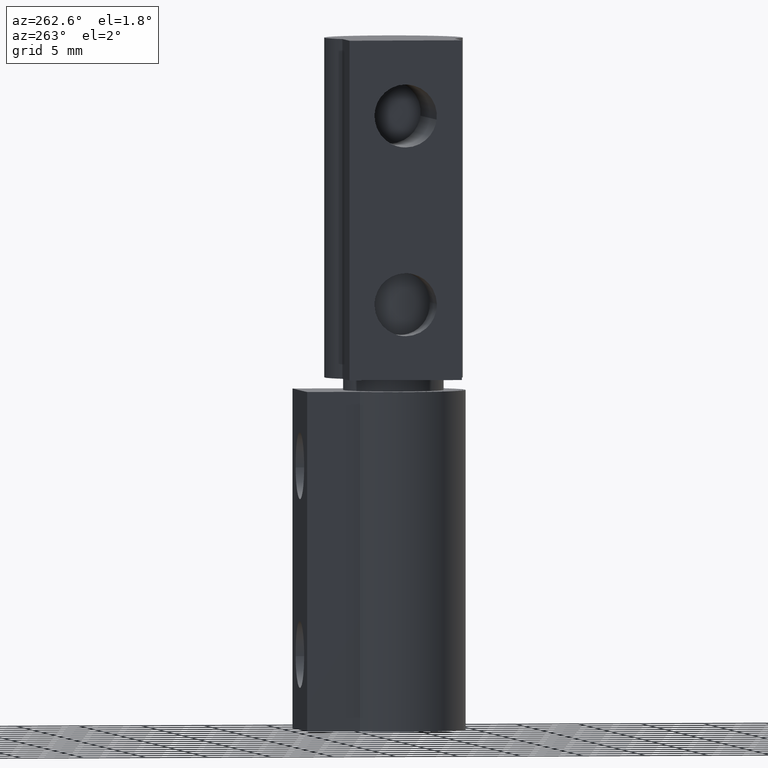
[diagram: clean part render]
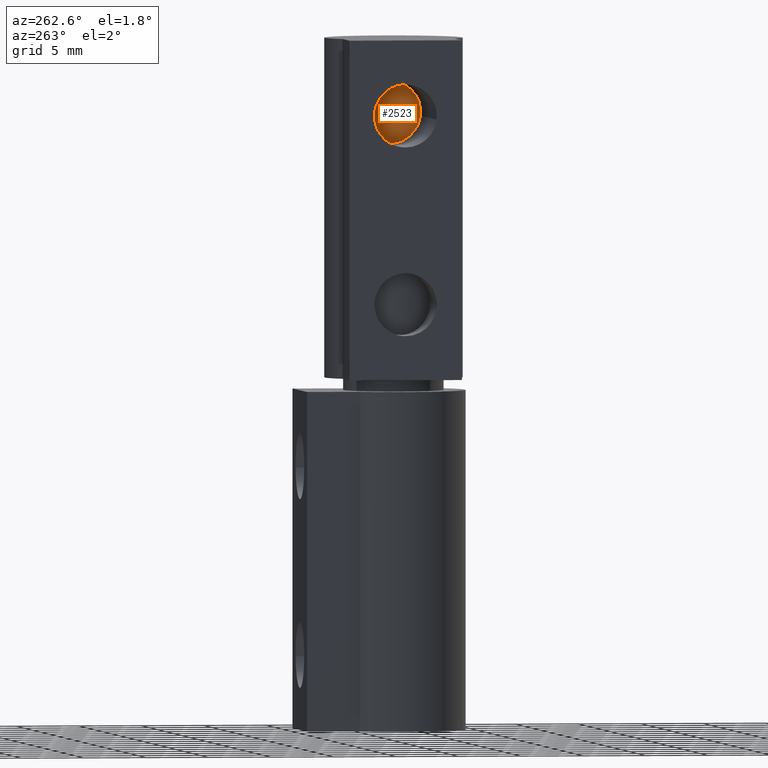
[diagram: same view with one face highlighted and labeled with its STEP entity id]
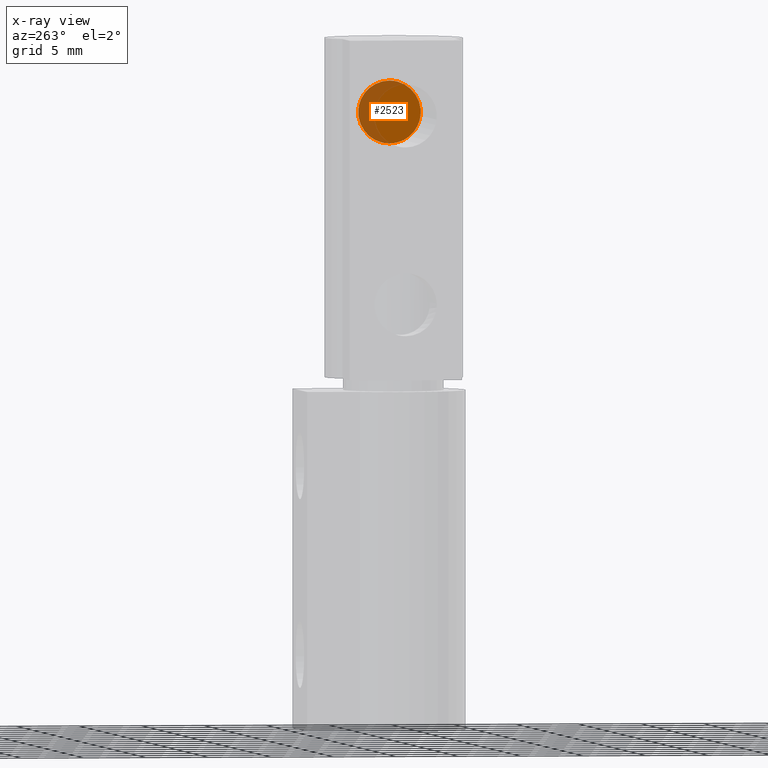
[diagram: x-ray of the same camera — body ghosted, the highlighted face saturated]
A machine part, auxiliary view. The second image highlights one B-rep face of the part: STEP entity #2523.
The next image is the same camera in x-ray: the body ghosted, the highlighted face saturated — about 34% of this face is hidden behind the body in this view.
In plain terms, the highlighted face is a freeform B-spline surface patch.
Its self-contained STEP definition (entity closure, byte-faithful):
#2166=CARTESIAN_POINT('',(2.499999768769135,-2.482561998375129,48.704916740648592));
#2167=VERTEX_POINT('',#2166);
#2168=CARTESIAN_POINT('',(2.499999768769135,-0.000038182474583,51.500002327362999));
#2169=VERTEX_POINT('',#2168);
#2170=CARTESIAN_POINT('',(2.499999768769136,-2.482561998375129,48.704916740648585));
#2171=CARTESIAN_POINT('',(2.499999768769135,-2.500038182474583,48.851942028159939));
#2172=CARTESIAN_POINT('',(2.499999768769135,-2.500038182474583,49.000002327362999));
#2173=CARTESIAN_POINT('',(2.499999768769136,-2.500038182474583,51.500002327363006));
#2174=CARTESIAN_POINT('',(2.499999768769135,-0.000038182474583,51.500002327362999));
#2182=(BOUNDED_CURVE()B_SPLINE_CURVE(2,(#2170,#2171,#2172,#2173,#2174),.UNSPECIFIED.,.F.,.U.)B_SPLINE_CURVE_WITH_KNOTS((3,2,3),(0.229562473505770,0.250000000000000,0.500000000000000),.UNSPECIFIED.)CURVE()GEOMETRIC_REPRESENTATION_ITEM()RATIONAL_B_SPLINE_CURVE((0.956026754168532,0.976055948322079,1.0,0.707106781186548,1.0))REPRESENTATION_ITEM(''));
#2183=EDGE_CURVE('',#2167,#2169,#2182,.T.);
#2224=CARTESIAN_POINT('',(2.499999768769135,2.495298813570860,49.152623676350963));
#2225=VERTEX_POINT('',#2224);
#2231=CARTESIAN_POINT('',(2.499999768769135,-0.000038182474583,51.500002327362999));
#2232=CARTESIAN_POINT('',(2.499999768769134,2.351726984504866,51.500002327362992));
#2233=CARTESIAN_POINT('',(2.499999768769136,2.495298813570861,49.152623676350963));
#2241=(BOUNDED_CURVE()B_SPLINE_CURVE(2,(#2231,#2232,#2233),.UNSPECIFIED.,.F.,.U.)B_SPLINE_CURVE_WITH_KNOTS((3,3),(0.500000000000000,0.739332962221113),.UNSPECIFIED.)CURVE()GEOMETRIC_REPRESENTATION_ITEM()RATIONAL_B_SPLINE_CURVE((1.0,0.719603993307600,0.976072041628504))REPRESENTATION_ITEM(''));
#2242=EDGE_CURVE('',#2169,#2225,#2241,.T.);
#2265=CARTESIAN_POINT('',(2.499999768769135,-0.000038182474583,46.500002327362999));
#2266=VERTEX_POINT('',#2265);
#2267=CARTESIAN_POINT('',(2.499999768769135,-0.000038182474583,46.500002327362999));
#2268=CARTESIAN_POINT('',(2.499999768769136,-2.220474497222359,46.500002327362999));
#2269=CARTESIAN_POINT('',(2.499999768769135,-2.482561998375129,48.704916740648585));
#2277=(BOUNDED_CURVE()B_SPLINE_CURVE(2,(#2267,#2268,#2269),.UNSPECIFIED.,.F.,.U.)B_SPLINE_CURVE_WITH_KNOTS((3,3),(0.0,0.229562473505770),.UNSPECIFIED.)CURVE()GEOMETRIC_REPRESENTATION_ITEM()RATIONAL_B_SPLINE_CURVE((1.0,0.731050832864468,0.956026754168532))REPRESENTATION_ITEM(''));
#2278=EDGE_CURVE('',#2266,#2167,#2277,.T.);
#2280=CARTESIAN_POINT('',(2.499999768769135,2.495298813570860,49.152623676350956));
#2281=CARTESIAN_POINT('',(2.499999768769136,2.499961817525417,49.076384235760706));
#2282=CARTESIAN_POINT('',(2.499999768769135,2.499961817525417,49.000002327362999));
#2283=CARTESIAN_POINT('',(2.499999768769136,2.499961817525417,46.500002327362992));
#2284=CARTESIAN_POINT('',(2.499999768769135,-0.000038182474583,46.500002327362999));
#2292=(BOUNDED_CURVE()B_SPLINE_CURVE(2,(#2280,#2281,#2282,#2283,#2284),.UNSPECIFIED.,.F.,.U.)B_SPLINE_CURVE_WITH_KNOTS((3,2,3),(0.739332962221112,0.750000000000000,1.0),.UNSPECIFIED.)CURVE()GEOMETRIC_REPRESENTATION_ITEM()RATIONAL_B_SPLINE_CURVE((0.976072041628502,0.987502787878947,1.0,0.707106781186548,1.0))REPRESENTATION_ITEM(''));
#2293=EDGE_CURVE('',#2225,#2266,#2292,.T.);
#2512=CARTESIAN_POINT('',(2.499999768769160,2.749651006992891,51.749753842056343));
#2513=CARTESIAN_POINT('',(2.499999768769160,-2.749742705236924,51.749753842056343));
#2514=CARTESIAN_POINT('',(2.499999768769160,2.749651006992891,46.250253628989107));
#2515=CARTESIAN_POINT('',(2.499999768769160,-2.749742705236924,46.250253628989107));
#2516=B_SPLINE_SURFACE_WITH_KNOTS('',1,1,((#2512,#2514),(#2513,#2515)),.UNSPECIFIED.,.F.,.F.,.U.,(2,2),(2,2),(0.0,5.499393712229815),(0.0,5.499500213067229),.UNSPECIFIED.);
#2517=ORIENTED_EDGE('',*,*,#2278,.T.);
#2518=ORIENTED_EDGE('',*,*,#2183,.T.);
#2519=ORIENTED_EDGE('',*,*,#2242,.T.);
#2520=ORIENTED_EDGE('',*,*,#2293,.T.);
#2521=EDGE_LOOP('',(#2517,#2518,#2519,#2520));
#2522=FACE_OUTER_BOUND('',#2521,.T.);
#2523=ADVANCED_FACE('',(#2522),#2516,.F.);